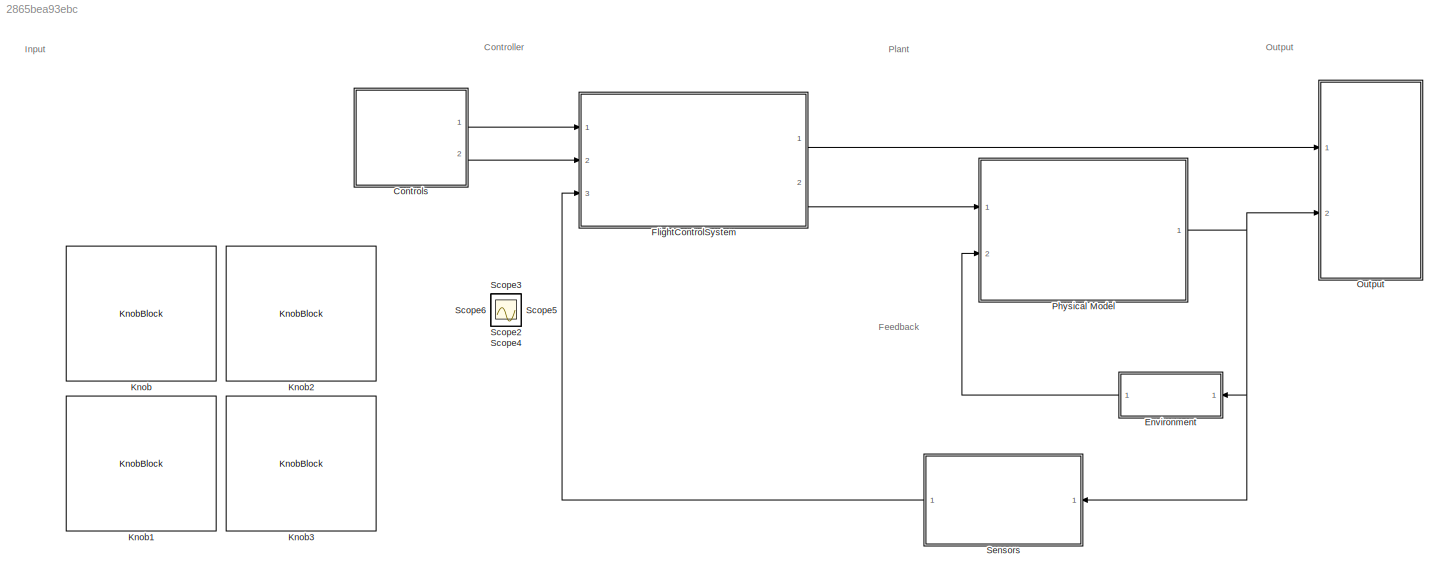
MODEL slx_2865bea93ebc
KIND model
CONFIG AbsTol = auto
CONFIG EnableMultiTasking = off
CONFIG FixedStep = Ts
CONFIG MaxStep = auto
CONFIG MinStep = auto
CONFIG RelTol = 1e-3
CONFIG SampleTimeConstraint = Unconstrained
CONFIG SolverName = FixedStepAuto
CONFIG StartTime = 0.0
CONFIG StopTime = 20
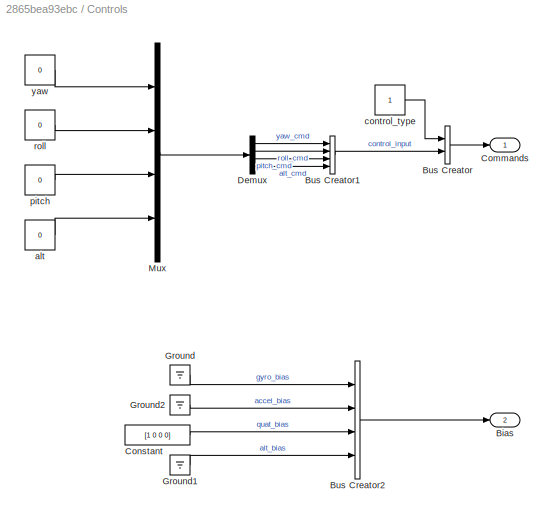
BLOCK [SubSystem] Controls
  Ports = [0, 2]
  RequestExecContextInheritance = off
BLOCK [Outport] Controls/Bias
  OutDataTypeStr = Bus: sensor_bias_t
  Port = 2
BLOCK [BusCreator] Controls/Bus Creator
  DisplayOption = bar
  InheritFromInputs = on
  Inputs = 2
  OutDataTypeStr = Bus: FCS_command_t
  Ports = [2, 1]
BLOCK [BusCreator] Controls/Bus Creator1
  DisplayOption = bar
  InheritFromInputs = off
  Inputs = 4
  OutDataTypeStr = Bus: FCS_control_t
  Ports = [4, 1]
BLOCK [BusCreator] Controls/Bus Creator2
  DisplayOption = bar
  InheritFromInputs = on
  Inputs = 4
  OutDataTypeStr = Bus: sensor_bias_t
  Ports = [4, 1]
BLOCK [Outport] Controls/Commands
  OutDataTypeStr = Bus: FCS_command_t
BLOCK [Constant] Controls/Constant
  OutDataTypeStr = single
  Value = [1 0 0 0]
BLOCK [Demux] Controls/Demux
  Ports = [1, 4]
BLOCK [Ground] Controls/Ground
BLOCK [Ground] Controls/Ground1
BLOCK [Ground] Controls/Ground2
BLOCK [Mux] Controls/Mux
  DisplayOption = bar
  Ports = [4, 1]
BLOCK [Constant] Controls/alt
  OutDataTypeStr = single
  Value = 0
BLOCK [Constant] Controls/control_type
  OutDataTypeStr = uint8
BLOCK [Constant] Controls/pitch
  OutDataTypeStr = single
  Value = 0
BLOCK [Constant] Controls/roll
  OutDataTypeStr = single
  Value = 0
BLOCK [Constant] Controls/yaw
  OutDataTypeStr = single
  Value = 0
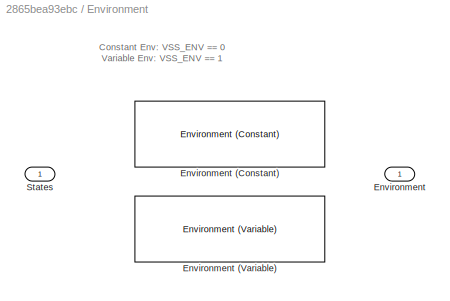
BLOCK [SubSystem] Environment
  Ports = [1, 1]
  RequestExecContextInheritance = off
  Variant = on
BLOCK [Outport] Environment/Environment
  OutDataTypeStr = Bus: EnvironmentBus
BLOCK [Reference] Environment/Environment (Constant)  REF=environmentLib/Environment (Constant)
  Ports = [1, 1]
  SourceBlock = environmentLib/Environment (Constant)
  SourceType = SubSystem
BLOCK [Reference] Environment/Environment (Variable)  REF=environmentLib/Environment (Variable)
  Ports = [1, 1]
  SourceBlock = environmentLib/Environment (Variable)
  SourceType = SubSystem
BLOCK [Inport] Environment/States
  OutDataTypeStr = Bus: StatesBus
BLOCK [ModelReference] FlightControlSystem
  ModelNameDialog = flightController.slx
  ModelReferenceVersion = 1.133
  Ports = [3, 2]
BLOCK [KnobBlock] Knob
  LabelPosition = Bottom
  ScaleMax = 10
  ScaleMin = -10
BLOCK [KnobBlock] Knob1
  LabelPosition = Bottom
  ScaleMax = 45
  ScaleMin = -45
BLOCK [KnobBlock] Knob2
  LabelPosition = Bottom
  ScaleMax = 180
  ScaleMin = -180
BLOCK [KnobBlock] Knob3
  LabelPosition = Bottom
  ScaleMax = 45
  ScaleMin = -45
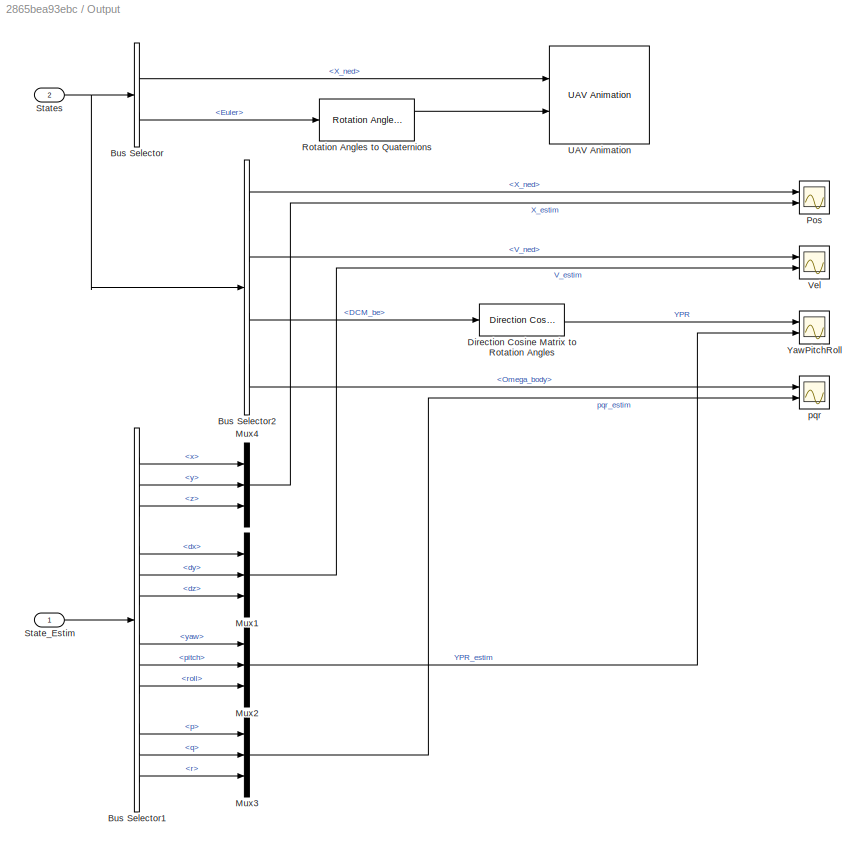
BLOCK [SubSystem] Output
  Ports = [2]
  RequestExecContextInheritance = off
BLOCK [BusSelector] Output/Bus Selector
  OutputSignals = X_ned,Euler
  Ports = [1, 2]
BLOCK [BusSelector] Output/Bus Selector1
  OutputSignals = x,y,z,dx,dy,dz,yaw,pitch,roll,p,q,r
  Ports = [1, 12]
BLOCK [BusSelector] Output/Bus Selector2
  OutputSignals = X_ned,V_ned,DCM_be,Omega_body
  Ports = [1, 4]
BLOCK [Reference] Output/Direction Cosine Matrix to Rotation Angles  REF=sharedtransform/Direction Cosine Matrix
to Rotation Angles
  AttributesFormatString = Rotation Order: %<rotationOrder>
  Ports = [1, 1]
  SourceBlock = sharedtransform/Direction Cosine Matrix\nto Rotation Angles
  SourceProductBaseCode = AE,PW,MT,UV,VE,VP
  SourceType = DCM2Ang
BLOCK [Mux] Output/Mux1
  DisplayOption = bar
  Inputs = 3
  Ports = [3, 1]
BLOCK [Mux] Output/Mux2
  DisplayOption = bar
  Inputs = 3
  Ports = [3, 1]
BLOCK [Mux] Output/Mux3
  DisplayOption = bar
  Inputs = 3
  Ports = [3, 1]
BLOCK [Mux] Output/Mux4
  DisplayOption = bar
  Inputs = 3
  Ports = [3, 1]
BLOCK [Scope] Output/Pos
  Floating = off
  NumInputPorts = 2
  Ports = [2]
  ScopeSpecificationString = Simulink.scopes.TimeScopeBlockCfg('CurrentConfiguration', extmgr.ConfigurationSet(extmgr.Configuration('Core','General UI',true),extmgr.Configuration('Core','Source UI',true),extmgr.Configuration('Sources','WiredSimulink',true,'DataLoggingVariableName','ScopeData1'),extmgr.Configuration('Visuals','Time Domain',true,'SerializedDisplays',{struct('MinYLimReal','-1318.59889','MaxYLimReal','532.56632',...<+1660ch>
BLOCK [Reference] Output/Rotation Angles to Quaternions  REF=sharedtransform/Rotation Angles to Quaternions
  AttributesFormatString = Rotation Order: %<rotationOrder>
  Ports = [1, 1]
  SourceBlock = sharedtransform/Rotation Angles to Quaternions
  SourceProductBaseCode = AE,PW,MT,UV,VE,VP
  SourceType = Ang2Quat
BLOCK [Inport] Output/State_Estim
BLOCK [Inport] Output/States
  Port = 2
BLOCK [Reference] Output/UAV Animation  REF=uavutilslib/UAV Animation
  Ports = [2]
  SourceBlock = uavutilslib/UAV Animation
  SourceProductBaseCode = UV
  SourceType = uav.sluav.internal.system.UAVAnimation
BLOCK [Scope] Output/Vel
  Floating = off
  NumInputPorts = 2
  Ports = [2]
  ScopeSpecificationString = Simulink.scopes.TimeScopeBlockCfg('CurrentConfiguration', extmgr.ConfigurationSet(extmgr.Configuration('Core','General UI',true),extmgr.Configuration('Core','Source UI',true),extmgr.Configuration('Sources','WiredSimulink',true,'DataLoggingVariableName','ScopeData2'),extmgr.Configuration('Visuals','Time Domain',true,'SerializedDisplays',{struct('MinYLimReal','-937.73713','MaxYLimReal','355.38429','...<+1655ch>
BLOCK [Scope] Output/YawPitchRoll
  Floating = off
  NumInputPorts = 2
  Ports = [2]
  ScopeSpecificationString = Simulink.scopes.TimeScopeBlockCfg('CurrentConfiguration', extmgr.ConfigurationSet(extmgr.Configuration('Core','General UI',true),extmgr.Configuration('Core','Source UI',true),extmgr.Configuration('Sources','WiredSimulink',true,'DataLoggingVariableName','ScopeData3'),extmgr.Configuration('Visuals','Time Domain',true,'SerializedDisplays',{struct('MinYLimReal','-0.3927','MaxYLimReal','3.53429','YLabe...<+1629ch>
BLOCK [Scope] Output/pqr
  Floating = off
  NumInputPorts = 2
  Ports = [2]
  ScopeSpecificationString = Simulink.scopes.TimeScopeBlockCfg('CurrentConfiguration', extmgr.ConfigurationSet(extmgr.Configuration('Core','General UI',true),extmgr.Configuration('Core','Source UI',true),extmgr.Configuration('Sources','WiredSimulink',true,'DataLoggingVariableName','ScopeData4'),extmgr.Configuration('Visuals','Time Domain',true,'SerializedDisplays',{struct('MinYLimReal','-3.98271','MaxYLimReal','5.4734','YLabe...<+1657ch>
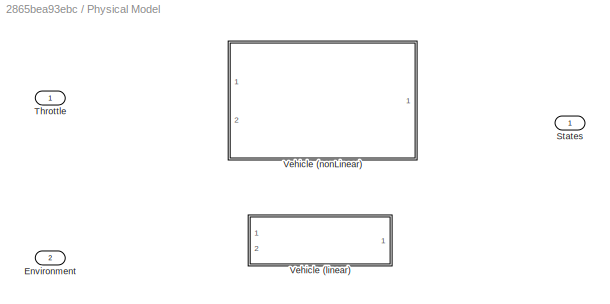
BLOCK [SubSystem] Physical Model
  Ports = [2, 1]
  RequestExecContextInheritance = off
  Variant = on
BLOCK [Inport] Physical Model/Environment
  OutDataTypeStr = Bus: EnvironmentBus
  Port = 2
BLOCK [Outport] Physical Model/States
  OutDataTypeStr = Bus: StatesBus
BLOCK [Inport] Physical Model/Throttle
  OutDataTypeStr = uint16
BLOCK [ModelReference] Physical Model/Vehicle (linear)
  ModelNameDialog = linearAirframe.slx
  ModelReferenceVersion = 1.46
  Ports = [2, 1]
  VariantControl = VSS_linear
BLOCK [ModelReference] Physical Model/Vehicle (nonLinear)
  ModelNameDialog = physicalModel.slx
  ModelReferenceVersion = 2.33
  Ports = [2, 1]
  VariantControl = VSS_nonLinear
BLOCK [Scope] Scope2
  Floating = off
  IOType = viewer
  NumInputPorts = 1
  Ports = []
  ScopeSpecificationString = Simulink.scopes.TimeScopeBlockCfg('CurrentConfiguration', extmgr.ConfigurationSet(extmgr.Configuration('Core','General UI',true),extmgr.Configuration('Core','Source UI',true),extmgr.Configuration('Sources','WiredSimulink',true,'DataLoggingVariableName','ScopeData2'),extmgr.Configuration('Visuals','Time Domain',true,'SerializedDisplays',{struct('MinYLimReal','-3.19166','MaxYLimReal','2.55247','YLab...<+1524ch>
BLOCK [Scope] Scope3
  Floating = off
  IOType = viewer
  NumInputPorts = 1
  Ports = []
  ScopeSpecificationString = Simulink.scopes.TimeScopeBlockCfg('CurrentConfiguration', extmgr.ConfigurationSet(extmgr.Configuration('Core','General UI',true),extmgr.Configuration('Core','Source UI',true),extmgr.Configuration('Sources','WiredSimulink',true,'DataLoggingVariableName','ScopeData1'),extmgr.Configuration('Visuals','Time Domain',true,'SerializedDisplays',{struct('MinYLimReal','-3.53554','MaxYLimReal','31.49077','YLa...<+1510ch>
BLOCK [Scope] Scope4
  Floating = off
  IOType = viewer
  NumInputPorts = 1
  Ports = []
  ScopeSpecificationString = Simulink.scopes.TimeScopeBlockCfg('CurrentConfiguration', extmgr.ConfigurationSet(extmgr.Configuration('Core','General UI',true),extmgr.Configuration('Core','Source UI',true),extmgr.Configuration('Sources','WiredSimulink',true,'DataLoggingVariableName','ScopeData2'),extmgr.Configuration('Visuals','Time Domain',true,'SerializedDisplays',{struct('MinYLimReal','-13.67686','MaxYLimReal','12.63072','YL...<+1532ch>
BLOCK [Scope] Scope5
  Floating = off
  IOType = viewer
  NumInputPorts = 1
  Ports = []
  ScopeSpecificationString = Simulink.scopes.TimeScopeBlockCfg('CurrentConfiguration', extmgr.ConfigurationSet(extmgr.Configuration('Core','General UI',true),extmgr.Configuration('Core','Source UI',true),extmgr.Configuration('Sources','WiredSimulink',true,'DataLoggingVariableName','ScopeData3'),extmgr.Configuration('Visuals','Time Domain',true,'SerializedDisplays',{struct('MinYLimReal','-13.63118','MaxYLimReal','12.21965','YL...<+1533ch>
BLOCK [Scope] Scope6
  Floating = off
  IOType = viewer
  NumInputPorts = 1
  Ports = []
  ScopeSpecificationString = Simulink.scopes.TimeScopeBlockCfg('CurrentConfiguration', extmgr.ConfigurationSet(extmgr.Configuration('Core','General UI',true),extmgr.Configuration('Core','Source UI',true),extmgr.Configuration('Sources','WiredSimulink',true,'DataLoggingVariableName','ScopeData2'),extmgr.Configuration('Visuals','Time Domain',true,'SerializedDisplays',{struct('MinYLimReal','-0.81853','MaxYLimReal','0.76499','YLab...<+1382ch>
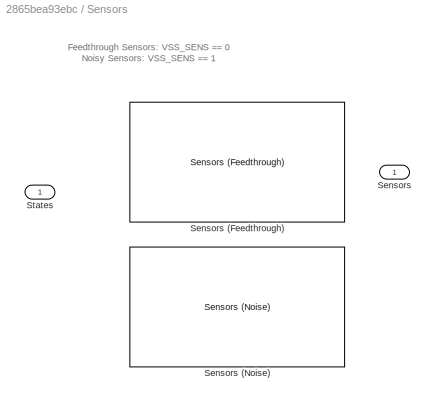
BLOCK [SubSystem] Sensors
  Ports = [1, 1]
  RequestExecContextInheritance = off
  Variant = on
BLOCK [Outport] Sensors/Sensors
  OutDataTypeStr = Bus: sensor_data_t
BLOCK [Reference] Sensors/Sensors (Feedthrough)  REF=sensorLib/Sensors (Feedthrough)
  Ports = [1, 1]
  SourceBlock = sensorLib/Sensors (Feedthrough)
  SourceType = SubSystem
BLOCK [Reference] Sensors/Sensors (Noise)  REF=sensorLib/Sensors (Noise)
  Ports = [1, 1]
  SourceBlock = sensorLib/Sensors (Noise)
  SourceType = SubSystem
BLOCK [Inport] Sensors/States
  OutDataTypeStr = Bus: StatesBus
ANNOTATION (root): Controller
ANNOTATION (root): Feedback
ANNOTATION (root): Input
ANNOTATION (root): Output
ANNOTATION (root): Plant
ANNOTATION Environment: Constant Env: VSS_ENV == 0 Variable Env: VSS_ENV == 1
ANNOTATION Sensors: Feedthrough Sensors: VSS_SENS == 0 Noisy Sensors: VSS_SENS == 1
LINE Controls/Bus Creator1:1 -> Controls/Bus Creator:2
LINE Controls/Bus Creator2:1 -> Controls/Bias:1
LINE Controls/Bus Creator:1 -> Controls/Commands:1
LINE Controls/Constant:1 -> Controls/Bus Creator2:3
LINE Controls/Demux:1 -> Controls/Bus Creator1:1
LINE Controls/Demux:2 -> Controls/Bus Creator1:2
LINE Controls/Demux:3 -> Controls/Bus Creator1:3
LINE Controls/Demux:4 -> Controls/Bus Creator1:4
LINE Controls/Ground1:1 -> Controls/Bus Creator2:4
LINE Controls/Ground2:1 -> Controls/Bus Creator2:2
LINE Controls/Ground:1 -> Controls/Bus Creator2:1
LINE Controls/Mux:1 -> Controls/Demux:1
LINE Controls/alt:1 -> Controls/Mux:4
LINE Controls/control_type:1 -> Controls/Bus Creator:1
LINE Controls/pitch:1 -> Controls/Mux:3
LINE Controls/roll:1 -> Controls/Mux:2
LINE Controls/yaw:1 -> Controls/Mux:1
LINE Controls:1 -> FlightControlSystem:1
LINE Controls:2 -> FlightControlSystem:2
LINE Environment:1 -> Physical Model:2
LINE FlightControlSystem:1 -> Output:1
LINE FlightControlSystem:2 -> Physical Model:1
LINE Output/Bus Selector1:1 -> Output/Mux4:1
LINE Output/Bus Selector1:10 -> Output/Mux3:1
LINE Output/Bus Selector1:11 -> Output/Mux3:2
LINE Output/Bus Selector1:12 -> Output/Mux3:3
LINE Output/Bus Selector1:2 -> Output/Mux4:2
LINE Output/Bus Selector1:3 -> Output/Mux4:3
LINE Output/Bus Selector1:4 -> Output/Mux1:1
LINE Output/Bus Selector1:5 -> Output/Mux1:2
LINE Output/Bus Selector1:6 -> Output/Mux1:3
LINE Output/Bus Selector1:7 -> Output/Mux2:1
LINE Output/Bus Selector1:8 -> Output/Mux2:2
LINE Output/Bus Selector1:9 -> Output/Mux2:3
LINE Output/Bus Selector2:1 -> Output/Pos:1
LINE Output/Bus Selector2:2 -> Output/Vel:1
LINE Output/Bus Selector2:3 -> Output/Direction Cosine Matrix to Rotation Angles:1
LINE Output/Bus Selector2:4 -> Output/pqr:1
LINE Output/Bus Selector:1 -> Output/UAV Animation:1
LINE Output/Bus Selector:2 -> Output/Rotation Angles to Quaternions:1
LINE Output/Direction Cosine Matrix to Rotation Angles:1 -> Output/YawPitchRoll:1
LINE Output/Mux1:1 -> Output/Vel:2
LINE Output/Mux2:1 -> Output/YawPitchRoll:2
LINE Output/Mux3:1 -> Output/pqr:2
LINE Output/Mux4:1 -> Output/Pos:2
LINE Output/Rotation Angles to Quaternions:1 -> Output/UAV Animation:2
LINE Output/State_Estim:1 -> Output/Bus Selector1:1
NET Output/States:1 -> Output/Bus Selector2:1, Output/Bus Selector:1
NET Physical Model:1 -> Environment:1, Output:2, Sensors:1
LINE Sensors:1 -> FlightControlSystem:3
note: NET lines group one-source signal fan-out (src -> all destinations, sorted); 1:1 wires keep LINE
